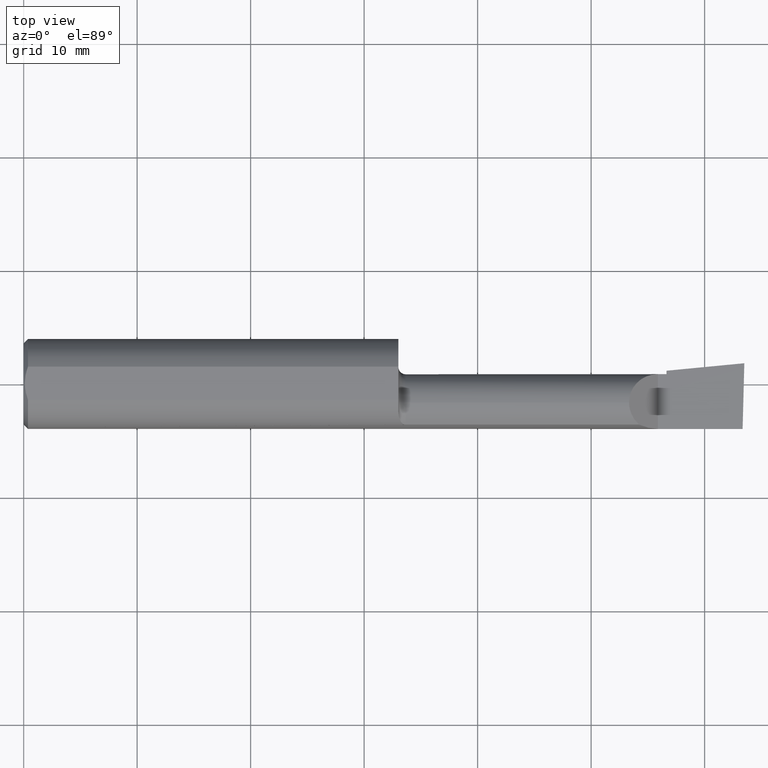
[diagram: clean part render]
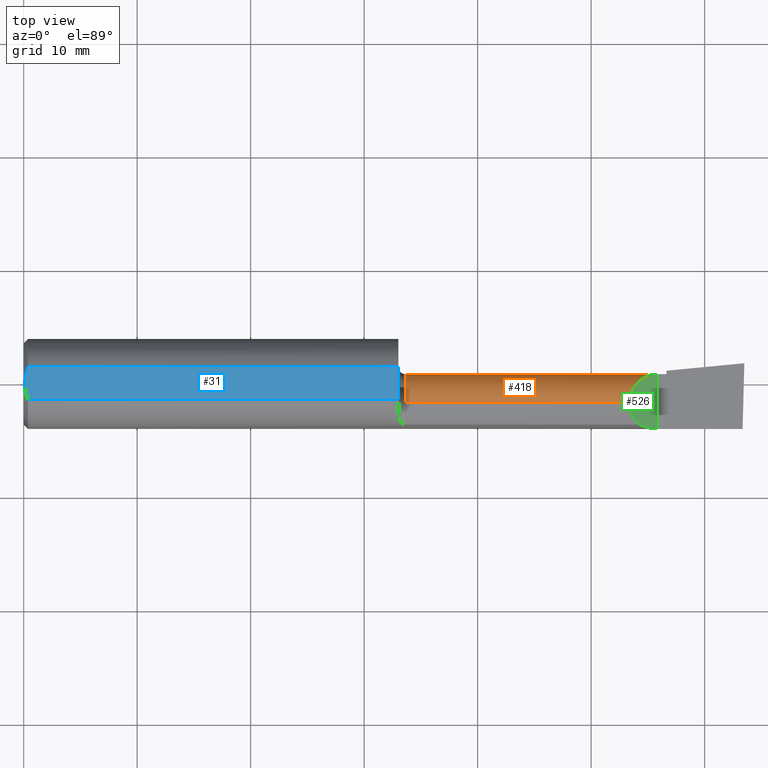
[diagram: same view with three faces highlighted in distinct colors, each labeled with its STEP entity id]
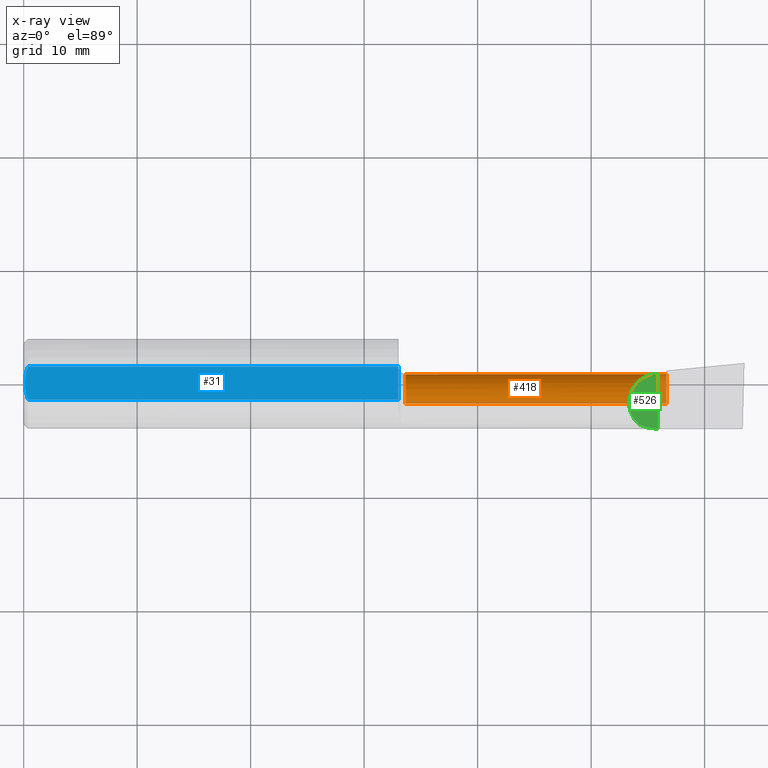
[diagram: x-ray of the same camera — body ghosted, the three highlighted faces saturated]
A machine part, top view with three faces highlighted in distinct colors.
The next image is the same camera in x-ray (body ghosted, the three faces saturated) — at least one of them is partly hidden behind the body in this view.
Their STEP definitions:

[orange] entity #418 — the highlighted cylindrical surface (edge-blend (fillet) strip) has radius 2.5375 mm, axis along (-1, -0, -0).
#11 = DIRECTION ( 'NONE',  ( 1.000000000000000000, 0.0000000000000000000, 0.0000000000000000000 ) ) ;
#16 = CARTESIAN_POINT ( 'NONE',  ( 2.200000000000000178, 0.03389999999999987468, 9.797174393178826150E-17 ) ) ;
#18 = EDGE_CURVE ( 'NONE', #389, #585, #80, .T. ) ;
#22 = AXIS2_PLACEMENT_3D ( 'NONE', #548, #703, #706 ) ;
#25 = CARTESIAN_POINT ( 'NONE',  ( 2.229999999999999982, 0.02031953758082122655, -0.05028864118101800118 ) ) ;
#27 = CARTESIAN_POINT ( 'NONE',  ( 1.325000000000000178, -0.06599999999999998923, -0.09989999999999990554 ) ) ;
#30 = CARTESIAN_POINT ( 'NONE',  ( 2.229999999999999982, -0.06599999999999998923, 0.0000000000000000000 ) ) ;
#37 = CARTESIAN_POINT ( 'NONE',  ( 1.325000000000000178, -0.06599999999999998923, 0.0000000000000000000 ) ) ;
#44 = CARTESIAN_POINT ( 'NONE',  ( 2.100099999999998968, -0.06599999999999998923, 0.09989999999999991942 ) ) ;
#49 = VECTOR ( 'NONE', #196, 39.37007874015748143 ) ;
#52 = AXIS2_PLACEMENT_3D ( 'NONE', #327, #651, #268 ) ;
#62 = ORIENTED_EDGE ( 'NONE', *, *, #318, .T. ) ;
#64 = CIRCLE ( 'NONE', #590, 0.09989999999999991942 ) ;
#66 = LINE ( 'NONE', #681, #334 ) ;
#80 = CIRCLE ( 'NONE', #508, 0.09989999999999990554 ) ;
#84 = VERTEX_POINT ( 'NONE', #661 ) ;
#87 = EDGE_CURVE ( 'NONE', #407, #487, #509, .T. ) ;
#89 = DIRECTION ( 'NONE',  ( 0.0000000000000000000, 0.0000000000000000000, 1.000000000000000000 ) ) ;
#124 = CARTESIAN_POINT ( 'NONE',  ( 0.0000000000000000000, -0.06599999999999998923, -0.09989999999999991942 ) ) ;
#144 = ORIENTED_EDGE ( 'NONE', *, *, #469, .F. ) ;
#196 = DIRECTION ( 'NONE',  ( -1.000000000000000000, -0.0000000000000000000, -0.0000000000000000000 ) ) ;
#216 = EDGE_CURVE ( 'NONE', #579, #84, #657, .T. ) ;
#226 = EDGE_CURVE ( 'NONE', #487, #585, #237, .T. ) ;
#229 = DIRECTION ( 'NONE',  ( 0.0000000000000000000, -3.589139631315664435E-15, 1.000000000000000000 ) ) ;
#237 = LINE ( 'NONE', #124, #427 ) ;
#268 = DIRECTION ( 'NONE',  ( 0.0000000000000000000, 0.0000000000000000000, 1.000000000000000000 ) ) ;
#274 = ORIENTED_EDGE ( 'NONE', *, *, #216, .T. ) ;
#296 = CARTESIAN_POINT ( 'NONE',  ( 2.100099999999998968, -0.06599999999999998923, 0.09989999999999991942 ) ) ;
#318 = EDGE_CURVE ( 'NONE', #84, #350, #66, .T. ) ;
#325 = CIRCLE ( 'NONE', #22, 0.09989999999999993330 ) ;
#327 = CARTESIAN_POINT ( 'NONE',  ( 2.229999999999999982, -0.06599999999999998923, 0.0000000000000000000 ) ) ;
#331 = EDGE_CURVE ( 'NONE', #579, #389, #711, .T. ) ;
#334 = VECTOR ( 'NONE', #626, 39.37007874015748143 ) ;
#337 = CARTESIAN_POINT ( 'NONE',  ( 2.229999999999999982, -0.06599999999999998923, -0.09990000000000000269 ) ) ;
#345 = ORIENTED_EDGE ( 'NONE', *, *, #18, .F. ) ;
#349 = CARTESIAN_POINT ( 'NONE',  ( 2.141479934881071578, 0.03389999999999987468, 0.05852006511892780122 ) ) ;
#350 = VERTEX_POINT ( 'NONE', #685 ) ;
#357 = CARTESIAN_POINT ( 'NONE',  ( 0.0000000000000000000, -0.06599999999999998923, 0.09989999999999991942 ) ) ;
#365 = CYLINDRICAL_SURFACE ( 'NONE', #516, 0.09989999999999991942 ) ;
#366 = ORIENTED_EDGE ( 'NONE', *, *, #226, .T. ) ;
#388 = VERTEX_POINT ( 'NONE', #25 ) ;
#389 = VERTEX_POINT ( 'NONE', #483 ) ;
#407 = VERTEX_POINT ( 'NONE', #531 ) ;
#418 = ADVANCED_FACE ( 'NONE', ( #453 ), #365, .T. ) ;
#427 = VECTOR ( 'NONE', #672, 39.37007874015748143 ) ;
#431 = DIRECTION ( 'NONE',  ( -1.000000000000000000, -0.0000000000000000000, -0.0000000000000000000 ) ) ;
#433 = DIRECTION ( 'NONE',  ( -1.000000000000000000, -0.0000000000000000000, -0.0000000000000000000 ) ) ;
#453 = FACE_OUTER_BOUND ( 'NONE', #493, .T. ) ;
#469 = EDGE_CURVE ( 'NONE', #407, #388, #64, .T. ) ;
#483 = CARTESIAN_POINT ( 'NONE',  ( 1.325000000000000178, -0.06600000000000000311, 0.09989999999999990554 ) ) ;
#487 = VERTEX_POINT ( 'NONE', #337 ) ;
#493 = EDGE_LOOP ( 'NONE', ( #561, #366, #345, #707, #274, #62, #553, #144 ) ) ;
#508 = AXIS2_PLACEMENT_3D ( 'NONE', #37, #431, #89 ) ;
#509 = CIRCLE ( 'NONE', #52, 0.09989999999999993330 ) ;
#516 = AXIS2_PLACEMENT_3D ( 'NONE', #698, #433, #587 ) ;
#531 = CARTESIAN_POINT ( 'NONE',  ( 2.229999999999999982, -0.01311981690363747156, -0.08475668844224130971 ) ) ;
#541 = EDGE_CURVE ( 'NONE', #350, #388, #325, .T. ) ;
#548 = CARTESIAN_POINT ( 'NONE',  ( 2.229999999999999982, -0.06599999999999998923, 0.0000000000000000000 ) ) ;
#553 = ORIENTED_EDGE ( 'NONE', *, *, #541, .T. ) ;
#561 = ORIENTED_EDGE ( 'NONE', *, *, #87, .T. ) ;
#565 = CARTESIAN_POINT ( 'NONE',  ( 2.100099999999998523, -0.007479934881072268678, 0.09989999999999990554 ) ) ;
#579 = VERTEX_POINT ( 'NONE', #44 ) ;
#585 = VERTEX_POINT ( 'NONE', #27 ) ;
#587 = DIRECTION ( 'NONE',  ( 0.0000000000000000000, 0.0000000000000000000, 1.000000000000000000 ) ) ;
#590 = AXIS2_PLACEMENT_3D ( 'NONE', #30, #11, #229 ) ;
#626 = DIRECTION ( 'NONE',  ( 1.000000000000000000, 0.0000000000000000000, 0.0000000000000000000 ) ) ;
#651 = DIRECTION ( 'NONE',  ( -1.000000000000000000, -0.0000000000000000000, -0.0000000000000000000 ) ) ;
#657 =( BOUNDED_CURVE ( )  B_SPLINE_CURVE ( 3, ( #296, #565, #349, #16 ),
 .UNSPECIFIED., .F., .F. ) 
 B_SPLINE_CURVE_WITH_KNOTS ( ( 4, 4 ),
 ( 0.0000000000000000000, 1.570796326794896114 ),
 .UNSPECIFIED. ) 
 CURVE ( )  GEOMETRIC_REPRESENTATION_ITEM ( )  RATIONAL_B_SPLINE_CURVE ( ( 1.000000000000000000, 0.8047378541243650485, 0.8047378541243650485, 1.000000000000000000 ) ) 
 REPRESENTATION_ITEM ( '' )  );
#661 = CARTESIAN_POINT ( 'NONE',  ( 2.200000000000000178, 0.03389999999999987468, 9.797174393178826150E-17 ) ) ;
#672 = DIRECTION ( 'NONE',  ( -1.000000000000000000, -0.0000000000000000000, -0.0000000000000000000 ) ) ;
#681 = CARTESIAN_POINT ( 'NONE',  ( 3.121792066109142165E-32, 0.03389999999999990937, 3.155924005931204823E-16 ) ) ;
#685 = CARTESIAN_POINT ( 'NONE',  ( 2.229999999999999982, 0.03389999999999996488, 3.155924005931206302E-16 ) ) ;
#698 = CARTESIAN_POINT ( 'NONE',  ( 0.0000000000000000000, -0.06599999999999998923, 0.0000000000000000000 ) ) ;
#703 = DIRECTION ( 'NONE',  ( -1.000000000000000000, -0.0000000000000000000, -0.0000000000000000000 ) ) ;
#706 = DIRECTION ( 'NONE',  ( 0.0000000000000000000, 0.0000000000000000000, 1.000000000000000000 ) ) ;
#707 = ORIENTED_EDGE ( 'NONE', *, *, #331, .F. ) ;
#711 = LINE ( 'NONE', #357, #49 ) ;

[blue] entity #31 — the highlighted planar face has unit normal (0, -0, -1).
#3 = EDGE_CURVE ( 'NONE', #108, #460, #457, .T. ) ;
#4 = ORIENTED_EDGE ( 'NONE', *, *, #416, .F. ) ;
#8 = DIRECTION ( 'NONE',  ( 0.0000000000000000000, 1.000000000000000000, -1.656870447394628111E-16 ) ) ;
#24 = DIRECTION ( 'NONE',  ( 1.000000000000000000, 0.0000000000000000000, 0.0000000000000000000 ) ) ;
#26 = ORIENTED_EDGE ( 'NONE', *, *, #3, .F. ) ;
#31 = ADVANCED_FACE ( 'NONE', ( #167 ), #319, .F. ) ;
#34 = CARTESIAN_POINT ( 'NONE',  ( 0.0000000000000000000, 0.05756040305626779902, 0.1450999999999999512 ) ) ;
#43 = EDGE_CURVE ( 'NONE', #207, #108, #653, .T. ) ;
#102 = VECTOR ( 'NONE', #160, 39.37007874015748143 ) ;
#108 = VERTEX_POINT ( 'NONE', #213 ) ;
#114 = CARTESIAN_POINT ( 'NONE',  ( 0.004000000000000238608, 1.884449684559922719E-17, 0.1450999999999999790 ) ) ;
#123 = ORIENTED_EDGE ( 'NONE', *, *, #138, .F. ) ;
#134 = VECTOR ( 'NONE', #211, 39.37007874015748143 ) ;
#137 = CARTESIAN_POINT ( 'NONE',  ( 0.01499999999999999424, 0.05756040305626779902, 0.1450999999999999512 ) ) ;
#138 = EDGE_CURVE ( 'NONE', #617, #425, #528, .T. ) ;
#146 = VECTOR ( 'NONE', #24, 39.37007874015748143 ) ;
#148 = CARTESIAN_POINT ( 'NONE',  ( 0.005030132703184950031, 0.01970541148932063169, 0.1451000000000000068 ) ) ;
#160 = DIRECTION ( 'NONE',  ( 0.0000000000000000000, -1.000000000000000000, 1.656870447394628111E-16 ) ) ;
#167 = FACE_OUTER_BOUND ( 'NONE', #610, .T. ) ;
#176 = CARTESIAN_POINT ( 'NONE',  ( 0.005011318927233133005, -0.01959047621504276041, 0.1450999999999999790 ) ) ;
#206 = CARTESIAN_POINT ( 'NONE',  ( 0.004000000000000238608, 1.884449684559922719E-17, 0.1450999999999999790 ) ) ;
#207 = VERTEX_POINT ( 'NONE', #510 ) ;
#211 = DIRECTION ( 'NONE',  ( -1.000000000000000000, -0.0000000000000000000, -0.0000000000000000000 ) ) ;
#213 = CARTESIAN_POINT ( 'NONE',  ( 0.004000000000000238608, 1.884449684559922719E-17, 0.1450999999999999790 ) ) ;
#228 = CARTESIAN_POINT ( 'NONE',  ( 0.008818052469297050708, -0.03886761757380372689, 0.1451000000000000068 ) ) ;
#252 = CARTESIAN_POINT ( 'NONE',  ( 0.008823987512428459190, 0.03887788046871686748, 0.1450999999999999790 ) ) ;
#285 = CARTESIAN_POINT ( 'NONE',  ( 0.01499999999999999424, -0.05756040305626774350, 0.1451000000000000068 ) ) ;
#319 = PLANE ( 'NONE',  #688 ) ;
#369 = CARTESIAN_POINT ( 'NONE',  ( 0.01158831187866387301, 0.04830813087846569376, 0.1450999999999999512 ) ) ;
#400 = DIRECTION ( 'NONE',  ( 0.0000000000000000000, -1.656870447394628111E-16, -1.000000000000000000 ) ) ;
#416 = EDGE_CURVE ( 'NONE', #425, #207, #632, .T. ) ;
#425 = VERTEX_POINT ( 'NONE', #647 ) ;
#444 = ORIENTED_EDGE ( 'NONE', *, *, #478, .F. ) ;
#457 = B_SPLINE_CURVE_WITH_KNOTS ( 'NONE', 3,
 ( #206, #534, #148, #252, #369, #693 ),
 .UNSPECIFIED., .F., .F.,
 ( 4, 2, 4 ),
 ( 0.002889203944960327779, 0.003632851267233511670, 0.004376498589506695562 ),
 .UNSPECIFIED. ) ;
#460 = VERTEX_POINT ( 'NONE', #137 ) ;
#478 = EDGE_CURVE ( 'NONE', #460, #617, #567, .T. ) ;
#490 = CARTESIAN_POINT ( 'NONE',  ( 1.300000000000000266, 0.2061000000000000332, 0.1450999999999999512 ) ) ;
#498 = ORIENTED_EDGE ( 'NONE', *, *, #43, .F. ) ;
#505 = CARTESIAN_POINT ( 'NONE',  ( 0.004000000000000188301, -0.009851916903761191377, 0.1450999999999999512 ) ) ;
#510 = CARTESIAN_POINT ( 'NONE',  ( 0.01499999999999999424, -0.05756040305626774350, 0.1451000000000000068 ) ) ;
#528 = LINE ( 'NONE', #490, #102 ) ;
#534 = CARTESIAN_POINT ( 'NONE',  ( 0.004000000000000188301, 0.009855731042683129120, 0.1450999999999999790 ) ) ;
#540 = CARTESIAN_POINT ( 'NONE',  ( 0.0000000000000000000, -0.05756040305626774350, 0.1451000000000000068 ) ) ;
#566 = CARTESIAN_POINT ( 'NONE',  ( 1.300000000000000266, 0.05756040305626777820, 0.1450999999999999512 ) ) ;
#567 = LINE ( 'NONE', #34, #146 ) ;
#610 = EDGE_LOOP ( 'NONE', ( #123, #444, #26, #498, #4 ) ) ;
#617 = VERTEX_POINT ( 'NONE', #566 ) ;
#632 = LINE ( 'NONE', #540, #134 ) ;
#647 = CARTESIAN_POINT ( 'NONE',  ( 1.300000000000000266, -0.05756040305626776432, 0.1451000000000000068 ) ) ;
#653 = B_SPLINE_CURVE_WITH_KNOTS ( 'NONE', 3,
 ( #285, #665, #228, #176, #505, #114 ),
 .UNSPECIFIED., .F., .F.,
 ( 4, 2, 4 ),
 ( 0.001402484879066372495, 0.002145844412013350570, 0.002889203944960327779 ),
 .UNSPECIFIED. ) ;
#665 = CARTESIAN_POINT ( 'NONE',  ( 0.01161840624095555018, -0.04838974479540033430, 0.1451000000000000345 ) ) ;
#688 = AXIS2_PLACEMENT_3D ( 'NONE', #697, #400, #8 ) ;
#693 = CARTESIAN_POINT ( 'NONE',  ( 0.01499999999999999424, 0.05756040305626779902, 0.1450999999999999512 ) ) ;
#697 = CARTESIAN_POINT ( 'NONE',  ( 2.500000000000000000, 0.2061000000000000332, 0.1450999999999999512 ) ) ;

[green] entity #526 — the highlighted planar face has unit normal (-0.7071, 0, -0.7071).
#7 = VERTEX_POINT ( 'NONE', #640 ) ;
#16 = CARTESIAN_POINT ( 'NONE',  ( 2.200000000000000178, 0.03389999999999987468, 9.797174393178826150E-17 ) ) ;
#44 = CARTESIAN_POINT ( 'NONE',  ( 2.100099999999998968, -0.06599999999999998923, 0.09989999999999991942 ) ) ;
#46 = EDGE_LOOP ( 'NONE', ( #83, #546, #244, #543 ) ) ;
#54 = VERTEX_POINT ( 'NONE', #344 ) ;
#57 = AXIS2_PLACEMENT_3D ( 'NONE', #257, #475, #482 ) ;
#76 = CARTESIAN_POINT ( 'NONE',  ( 2.155587570325277369, -0.1513252362624134539, 0.04441242967472197600 ) ) ;
#78 = CARTESIAN_POINT ( 'NONE',  ( 2.112547924827750112, -0.1227037540429563173, 0.08745207517224930227 ) ) ;
#81 = CARTESIAN_POINT ( 'NONE',  ( 2.135154559332283597, -0.1419939393939393668, 0.06484544066771584514 ) ) ;
#83 = ORIENTED_EDGE ( 'NONE', *, *, #678, .F. ) ;
#84 = VERTEX_POINT ( 'NONE', #661 ) ;
#216 = EDGE_CURVE ( 'NONE', #579, #84, #657, .T. ) ;
#244 = ORIENTED_EDGE ( 'NONE', *, *, #265, .T. ) ;
#245 = PLANE ( 'NONE',  #57 ) ;
#257 = CARTESIAN_POINT ( 'NONE',  ( 2.200000000000000178, -0.2500000000000000555, 9.797174393178826150E-17 ) ) ;
#265 = EDGE_CURVE ( 'NONE', #54, #84, #275, .T. ) ;
#275 = LINE ( 'NONE', #515, #293 ) ;
#293 = VECTOR ( 'NONE', #301, 39.37007874015748143 ) ;
#296 = CARTESIAN_POINT ( 'NONE',  ( 2.100099999999998968, -0.06599999999999998923, 0.09989999999999991942 ) ) ;
#301 = DIRECTION ( 'NONE',  ( -0.0000000000000000000, 1.000000000000000000, -0.0000000000000000000 ) ) ;
#303 =( BOUNDED_CURVE ( )  B_SPLINE_CURVE ( 3, ( #81, #78, #421, #424 ),
 .UNSPECIFIED., .F., .F. ) 
 B_SPLINE_CURVE_WITH_KNOTS ( ( 4, 4 ),
 ( 5.418794317430680962, 6.283185307179586232 ),
 .UNSPECIFIED. ) 
 CURVE ( )  GEOMETRIC_REPRESENTATION_ITEM ( )  RATIONAL_B_SPLINE_CURVE ( ( 1.000000000000000000, 0.9386988813357772798, 0.9386988813357772798, 1.000000000000000000 ) ) 
 REPRESENTATION_ITEM ( '' )  );
#344 = CARTESIAN_POINT ( 'NONE',  ( 2.200000000000000178, -0.1560999999999999888, 9.797174393178826150E-17 ) ) ;
#349 = CARTESIAN_POINT ( 'NONE',  ( 2.141479934881071578, 0.03389999999999987468, 0.05852006511892780122 ) ) ;
#352 = EDGE_CURVE ( 'NONE', #54, #7, #501, .T. ) ;
#360 = CARTESIAN_POINT ( 'NONE',  ( 2.200000000000000178, -0.1560999999999999888, 9.797174393178826150E-17 ) ) ;
#419 = CARTESIAN_POINT ( 'NONE',  ( 2.177537118629004453, -0.1560999999999999333, 0.02246288137099522117 ) ) ;
#421 = CARTESIAN_POINT ( 'NONE',  ( 2.100099999999999412, -0.09571819601686552825, 0.09989999999999994718 ) ) ;
#424 = CARTESIAN_POINT ( 'NONE',  ( 2.100099999999998968, -0.06599999999999998923, 0.09989999999999991942 ) ) ;
#429 = FACE_OUTER_BOUND ( 'NONE', #46, .T. ) ;
#475 = DIRECTION ( 'NONE',  ( -0.7071067811865436870, 0.0000000000000000000, -0.7071067811865513475 ) ) ;
#477 = CARTESIAN_POINT ( 'NONE',  ( 2.135154559332283597, -0.1419939393939393668, 0.06484544066771584514 ) ) ;
#482 = DIRECTION ( 'NONE',  ( -0.7071067811865513475, 0.0000000000000000000, 0.7071067811865436870 ) ) ;
#501 =( BOUNDED_CURVE ( )  B_SPLINE_CURVE ( 3, ( #360, #419, #76, #477 ),
 .UNSPECIFIED., .F., .F. ) 
 B_SPLINE_CURVE_WITH_KNOTS ( ( 4, 4 ),
 ( 4.712388980384689674, 5.140782042693055942 ),
 .UNSPECIFIED. ) 
 CURVE ( )  GEOMETRIC_REPRESENTATION_ITEM ( )  RATIONAL_B_SPLINE_CURVE ( ( 1.000000000000000000, 0.9847649979006014576, 0.9847649979006014576, 1.000000000000000000 ) ) 
 REPRESENTATION_ITEM ( '' )  );
#515 = CARTESIAN_POINT ( 'NONE',  ( 2.200000000000000178, -0.2500000000000000555, 9.797174393178826150E-17 ) ) ;
#526 = ADVANCED_FACE ( 'NONE', ( #429 ), #245, .F. ) ;
#543 = ORIENTED_EDGE ( 'NONE', *, *, #216, .F. ) ;
#546 = ORIENTED_EDGE ( 'NONE', *, *, #352, .F. ) ;
#565 = CARTESIAN_POINT ( 'NONE',  ( 2.100099999999998523, -0.007479934881072268678, 0.09989999999999990554 ) ) ;
#579 = VERTEX_POINT ( 'NONE', #44 ) ;
#640 = CARTESIAN_POINT ( 'NONE',  ( 2.135154559332283597, -0.1419939393939393668, 0.06484544066771584514 ) ) ;
#657 =( BOUNDED_CURVE ( )  B_SPLINE_CURVE ( 3, ( #296, #565, #349, #16 ),
 .UNSPECIFIED., .F., .F. ) 
 B_SPLINE_CURVE_WITH_KNOTS ( ( 4, 4 ),
 ( 0.0000000000000000000, 1.570796326794896114 ),
 .UNSPECIFIED. ) 
 CURVE ( )  GEOMETRIC_REPRESENTATION_ITEM ( )  RATIONAL_B_SPLINE_CURVE ( ( 1.000000000000000000, 0.8047378541243650485, 0.8047378541243650485, 1.000000000000000000 ) ) 
 REPRESENTATION_ITEM ( '' )  );
#661 = CARTESIAN_POINT ( 'NONE',  ( 2.200000000000000178, 0.03389999999999987468, 9.797174393178826150E-17 ) ) ;
#678 = EDGE_CURVE ( 'NONE', #7, #579, #303, .T. ) ;